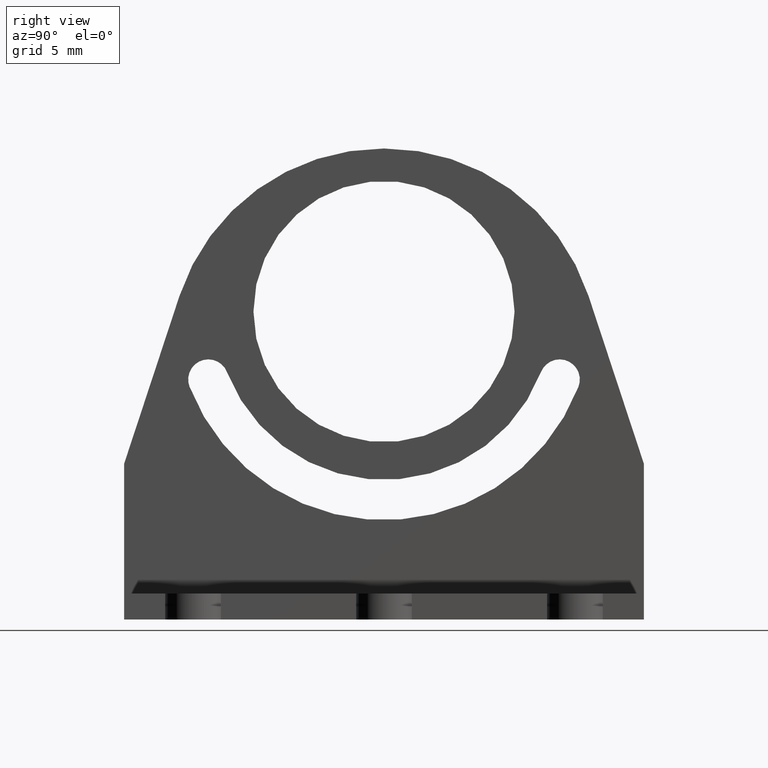
[diagram: clean part render]
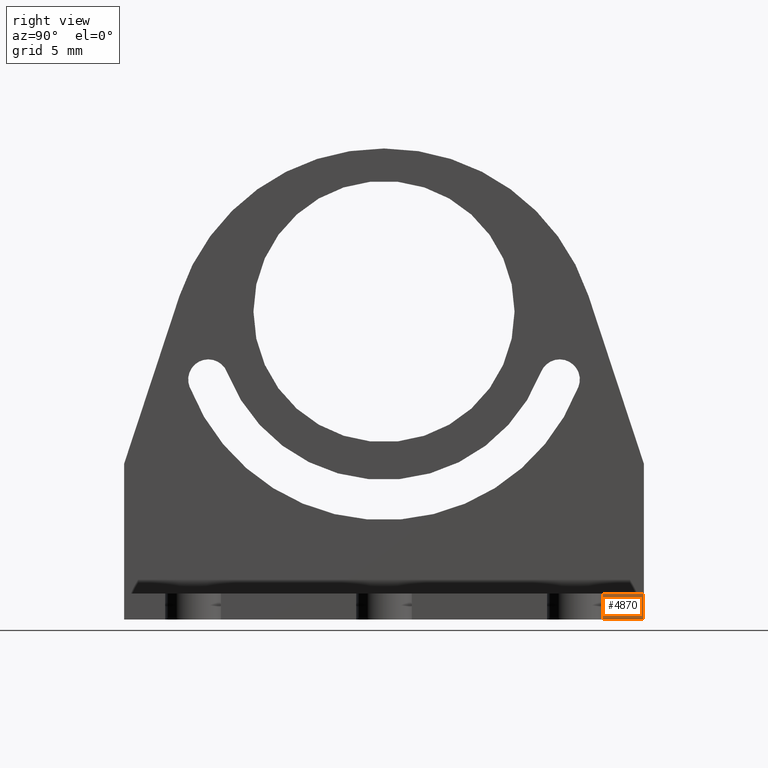
[diagram: same view with one face highlighted and labeled with its STEP entity id]
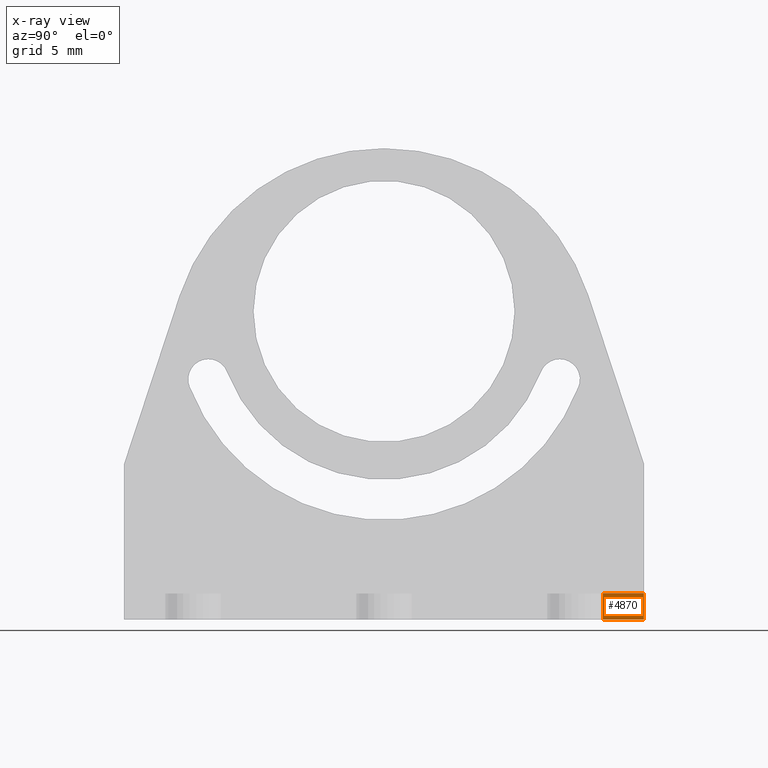
[diagram: x-ray of the same camera — body ghosted, the highlighted face saturated]
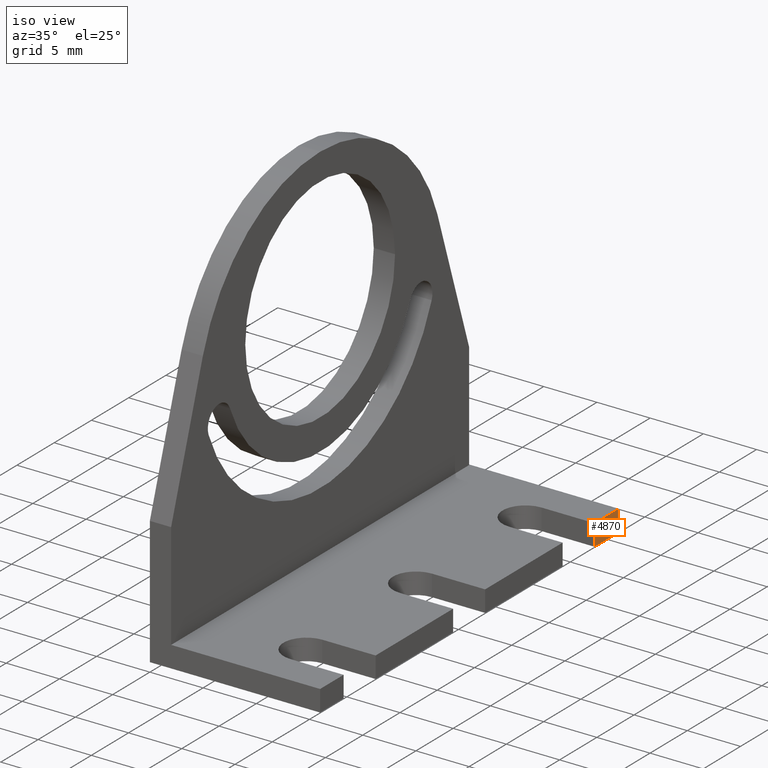
[diagram: same view with one face highlighted and labeled with its STEP entity id]
A machine part, right view. The second image highlights one B-rep face of the part: STEP entity #4870.
The next image is the same camera in x-ray: the body ghosted, the highlighted face saturated — about 0% of this face is hidden behind the body in this view.
A second angle (iso view) of the same face is appended — the face is thin or edge-on in the first view.
In plain terms, the highlighted planar face has unit normal (1, 0, -0).
Its self-contained STEP definition (entity closure, byte-faithful):
#530=CARTESIAN_POINT('',(0.,-1.82477793007524E-15,16.));
#540=DIRECTION('',(1.,7.39557098644699E-32,-3.46944695195361E-16));
#550=VECTOR('',#540,1.);
#560=LINE('',#530,#550);
#570=CARTESIAN_POINT('',(16.85,-1.82477793007524E-15,16.));
#580=VERTEX_POINT('',#570);
#590=CARTESIAN_POINT('',(20.,-1.82477793007524E-15,16.));
#600=VERTEX_POINT('',#590);
#610=EDGE_CURVE('',#580,#600,#560,.T.);
#2250=CARTESIAN_POINT('',(20.,-2.,16.));
#2260=VERTEX_POINT('',#2250);
#3260=CARTESIAN_POINT('',(16.85,-2.,16.));
#3270=VERTEX_POINT('',#3260);
#3300=CARTESIAN_POINT('',(0.,-2.,16.));
#3310=DIRECTION('',(1.,7.39557098644699E-32,-3.46944695195361E-16));
#3320=VECTOR('',#3310,1.);
#3330=LINE('',#3300,#3320);
#3340=EDGE_CURVE('',#3270,#2260,#3330,.T.);
#4230=CARTESIAN_POINT('',(16.85,0.,16.));
#4240=DIRECTION('',(2.46519032881566E-32,1.,1.31089490766937E-16));
#4250=VECTOR('',#4240,1.);
#4260=LINE('',#4230,#4250);
#4270=EDGE_CURVE('',#3270,#580,#4260,.T.);
#4710=CARTESIAN_POINT('',(-20.,-2.,16.));
#4720=DIRECTION('',(3.46944695195361E-16,-1.31089490766937E-16,1.));
#4730=DIRECTION('',(1.,0.,-3.46944695195361E-16));
#4740=AXIS2_PLACEMENT_3D('',#4710,#4720,#4730);
#4750=PLANE('',#4740);
#4760=ORIENTED_EDGE('',*,*,#3340,.T.);
#4770=ORIENTED_EDGE('',*,*,#4270,.F.);
#4780=ORIENTED_EDGE('',*,*,#610,.F.);
#4790=CARTESIAN_POINT('',(20.,0.,16.));
#4800=DIRECTION('',(0.,-1.,-1.31089490766937E-16));
#4810=VECTOR('',#4800,1.);
#4820=LINE('',#4790,#4810);
#4830=EDGE_CURVE('',#600,#2260,#4820,.T.);
#4840=ORIENTED_EDGE('',*,*,#4830,.F.);
#4850=EDGE_LOOP('',(#4840,#4780,#4770,#4760));
#4860=FACE_OUTER_BOUND('',#4850,.T.);
#4870=ADVANCED_FACE('',(#4860),#4750,.T.);